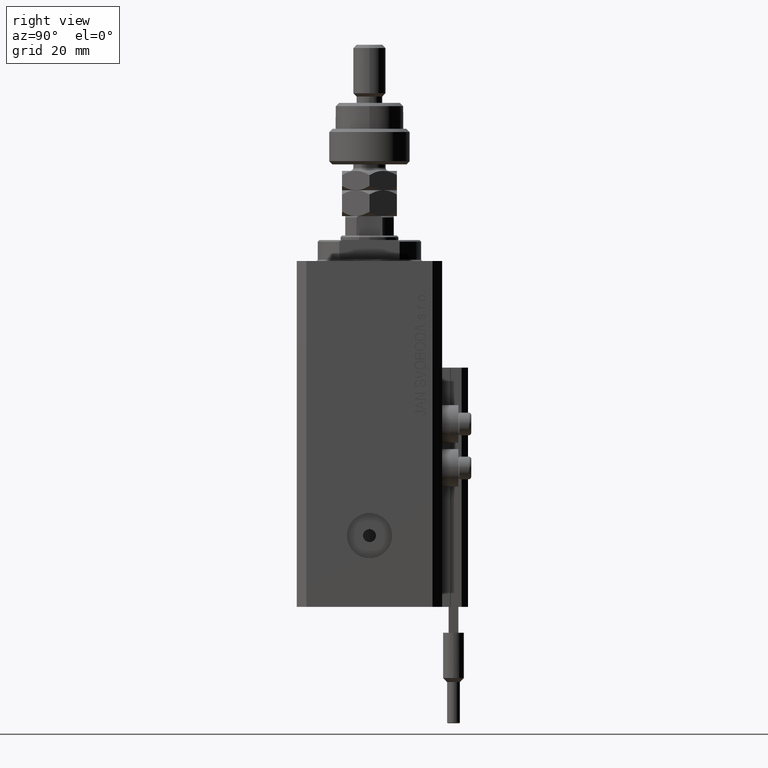
[diagram: clean part render]
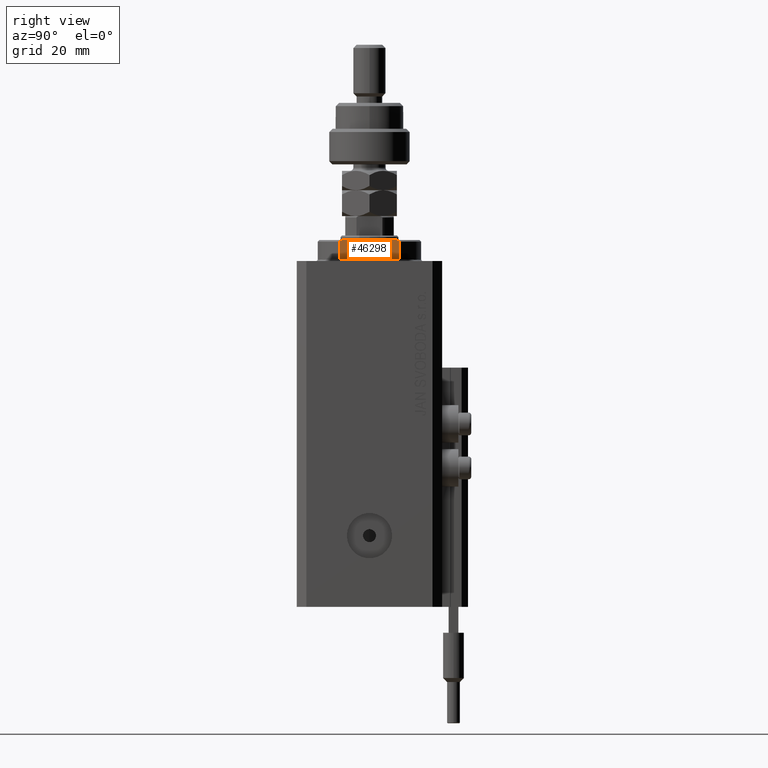
[diagram: same view with one face highlighted and labeled with its STEP entity id]
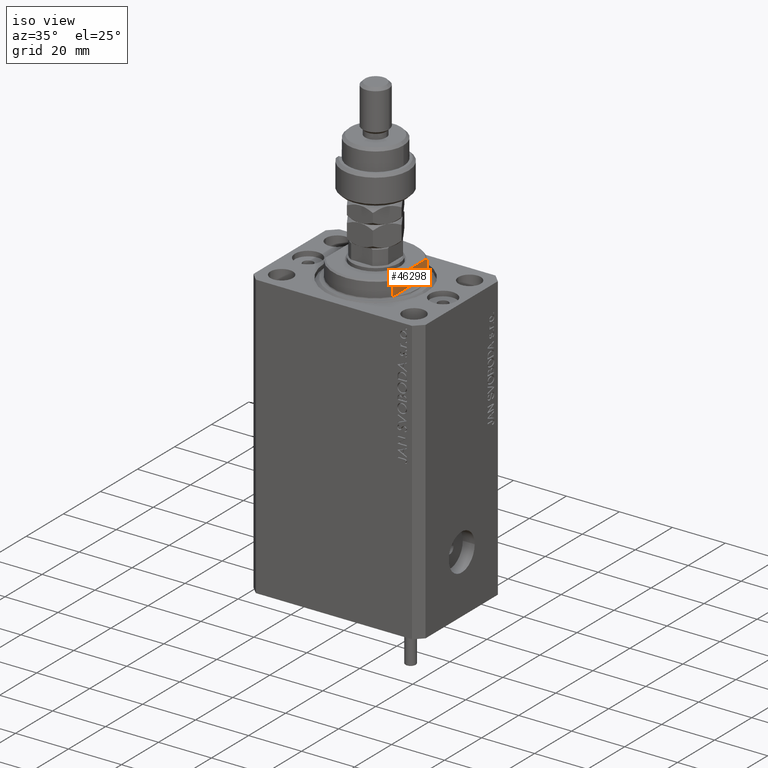
[diagram: same view with one face highlighted and labeled with its STEP entity id]
A machine part, right view. The second image highlights one B-rep face of the part: STEP entity #46298.
A second angle (iso view) of the same face is appended — the face is thin or edge-on in the first view.
In plain terms, the highlighted planar face has unit normal (-1, 0, 0).
Its self-contained STEP definition (entity closure, byte-faithful):
#2344 = CARTESIAN_POINT ( 'NONE',  ( -13.00000000000000000, -8.440971508067137918, -6.500000000000000000 ) ) ;
#2457 = FACE_OUTER_BOUND ( 'NONE', #8984, .T. ) ;
#2611 = DIRECTION ( 'NONE',  ( -0.000000000000000000, -1.000000000000000000, -0.000000000000000000 ) ) ;
#4338 = CARTESIAN_POINT ( 'NONE',  ( -13.00000000000000000, 8.738667591047022398, -6.337881022290552835 ) ) ;
#4476 = DIRECTION ( 'NONE',  ( -0.000000000000000000, -0.000000000000000000, 1.000000000000000000 ) ) ;
#5638 = VERTEX_POINT ( 'NONE', #7571 ) ;
#7002 = AXIS2_PLACEMENT_3D ( 'NONE', #37157, #49482, #14267 ) ;
#7571 = CARTESIAN_POINT ( 'NONE',  ( -13.00000000000000000, -9.327379053088815652, -0.4999999999999995559 ) ) ;
#8589 = EDGE_CURVE ( 'NONE', #16384, #5638, #21864, .T. ) ;
#8984 = EDGE_LOOP ( 'NONE', ( #42725, #13722, #29517, #25166, #19738, #40112 ) ) ;
#9660 = VECTOR ( 'NONE', #21362, 1000.000000000000000 ) ;
#11330 = CARTESIAN_POINT ( 'NONE',  ( -13.00000000000000000, -9.327379053088815652, -6.000000000000030198 ) ) ;
#11943 = CARTESIAN_POINT ( 'NONE',  ( -13.00000000000000000, 9.327379053088813876, -6.500000000000000000 ) ) ;
#13722 = ORIENTED_EDGE ( 'NONE', *, *, #14079, .T. ) ;
#13915 = CARTESIAN_POINT ( 'NONE',  ( -13.00000000000000000, -43.08131845707602992, -6.500000000000000000 ) ) ;
#14079 = EDGE_CURVE ( 'NONE', #33416, #37853, #21108, .T. ) ;
#14267 = DIRECTION ( 'NONE',  ( 0.000000000000000000, 0.000000000000000000, -1.000000000000000000 ) ) ;
#16133 = CARTESIAN_POINT ( 'NONE',  ( -13.00000000000000000, 9.034035639617135516, -6.171007825636153576 ) ) ;
#16384 = VERTEX_POINT ( 'NONE', #37997 ) ;
#16796 = LINE ( 'NONE', #11943, #41158 ) ;
#17670 = LINE ( 'NONE', #22550, #40232 ) ;
#17994 = CARTESIAN_POINT ( 'NONE',  ( -13.00000000000000000, -9.034292940839595332, -6.170857829009071871 ) ) ;
#18203 = EDGE_CURVE ( 'NONE', #44340, #16384, #16796, .T. ) ;
#19738 = ORIENTED_EDGE ( 'NONE', *, *, #8589, .F. ) ;
#20385 = CARTESIAN_POINT ( 'NONE',  ( -13.00000000000000000, 8.440971508067137918, -6.500000000000000000 ) ) ;
#20521 = EDGE_CURVE ( 'NONE', #37853, #39113, #32986, .T. ) ;
#21108 = LINE ( 'NONE', #13915, #9660 ) ;
#21362 = DIRECTION ( 'NONE',  ( -0.000000000000000000, -1.000000000000000000, -0.000000000000000000 ) ) ;
#21864 = LINE ( 'NONE', #38584, #35441 ) ;
#22550 = CARTESIAN_POINT ( 'NONE',  ( -13.00000000000000000, -9.327379053088813876, -6.500000000000000000 ) ) ;
#24817 = B_SPLINE_CURVE_WITH_KNOTS ( 'NONE', 3,
 ( #39551, #16133, #4338, #27960 ),
 .UNSPECIFIED., .F., .F.,
 ( 4, 4 ),
 ( 0.03031084603841415620, 0.03132841702658697297 ),
 .UNSPECIFIED. ) ;
#25166 = ORIENTED_EDGE ( 'NONE', *, *, #43127, .F. ) ;
#27960 = CARTESIAN_POINT ( 'NONE',  ( -13.00000000000000000, 8.440971508067137918, -6.500000000000000000 ) ) ;
#29517 = ORIENTED_EDGE ( 'NONE', *, *, #20521, .T. ) ;
#29946 = PLANE ( 'NONE',  #7002 ) ;
#31994 = EDGE_CURVE ( 'NONE', #44340, #33416, #24817, .T. ) ;
#32986 = B_SPLINE_CURVE_WITH_KNOTS ( 'NONE', 3,
 ( #2344, #49110, #17994, #33681 ),
 .UNSPECIFIED., .F., .F.,
 ( 4, 4 ),
 ( 0.04915043732154494860, 0.05017913261572036487 ),
 .UNSPECIFIED. ) ;
#33416 = VERTEX_POINT ( 'NONE', #20385 ) ;
#33681 = CARTESIAN_POINT ( 'NONE',  ( -13.00000000000000000, -9.327379053088815652, -6.000000000000030198 ) ) ;
#33754 = CARTESIAN_POINT ( 'NONE',  ( -13.00000000000000000, -8.440971508067137918, -6.500000000000000000 ) ) ;
#35441 = VECTOR ( 'NONE', #2611, 1000.000000000000000 ) ;
#37157 = CARTESIAN_POINT ( 'NONE',  ( -13.00000000000000000, -43.08131845707602992, -0.4999999999999995559 ) ) ;
#37853 = VERTEX_POINT ( 'NONE', #33754 ) ;
#37997 = CARTESIAN_POINT ( 'NONE',  ( -13.00000000000000000, 9.327379053088815652, -0.4999999999999995559 ) ) ;
#38584 = CARTESIAN_POINT ( 'NONE',  ( -13.00000000000000000, -43.08131845707602992, -0.4999999999999995559 ) ) ;
#39113 = VERTEX_POINT ( 'NONE', #11330 ) ;
#39551 = CARTESIAN_POINT ( 'NONE',  ( -13.00000000000000000, 9.327379053088916905, -6.000000000000021316 ) ) ;
#40112 = ORIENTED_EDGE ( 'NONE', *, *, #18203, .F. ) ;
#40232 = VECTOR ( 'NONE', #45705, 1000.000000000000000 ) ;
#40820 = CARTESIAN_POINT ( 'NONE',  ( -13.00000000000000000, 9.327379053088916905, -6.000000000000021316 ) ) ;
#41158 = VECTOR ( 'NONE', #4476, 1000.000000000000000 ) ;
#42725 = ORIENTED_EDGE ( 'NONE', *, *, #31994, .T. ) ;
#43127 = EDGE_CURVE ( 'NONE', #5638, #39113, #17670, .T. ) ;
#44340 = VERTEX_POINT ( 'NONE', #40820 ) ;
#45705 = DIRECTION ( 'NONE',  ( 0.000000000000000000, 0.000000000000000000, -1.000000000000000000 ) ) ;
#46298 = ADVANCED_FACE ( 'NONE', ( #2457 ), #29946, .F. ) ;
#49110 = CARTESIAN_POINT ( 'NONE',  ( -13.00000000000000000, -8.738941625005656633, -6.337731789204291033 ) ) ;
#49482 = DIRECTION ( 'NONE',  ( 1.000000000000000000, 0.000000000000000000, 0.000000000000000000 ) ) ;